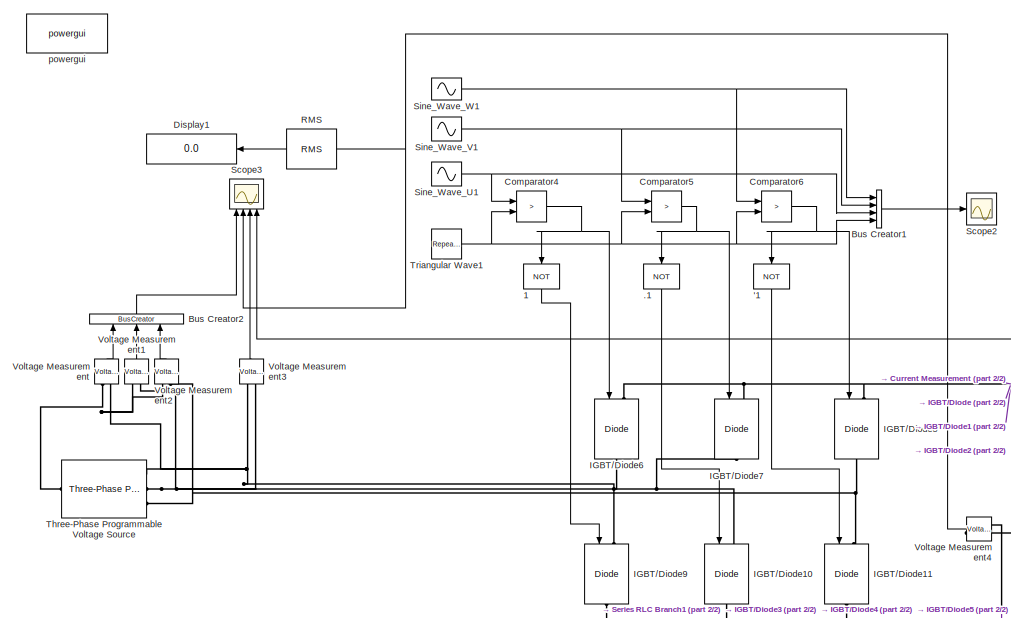
[diagram: root canvas - part 1/2, left side, full height]
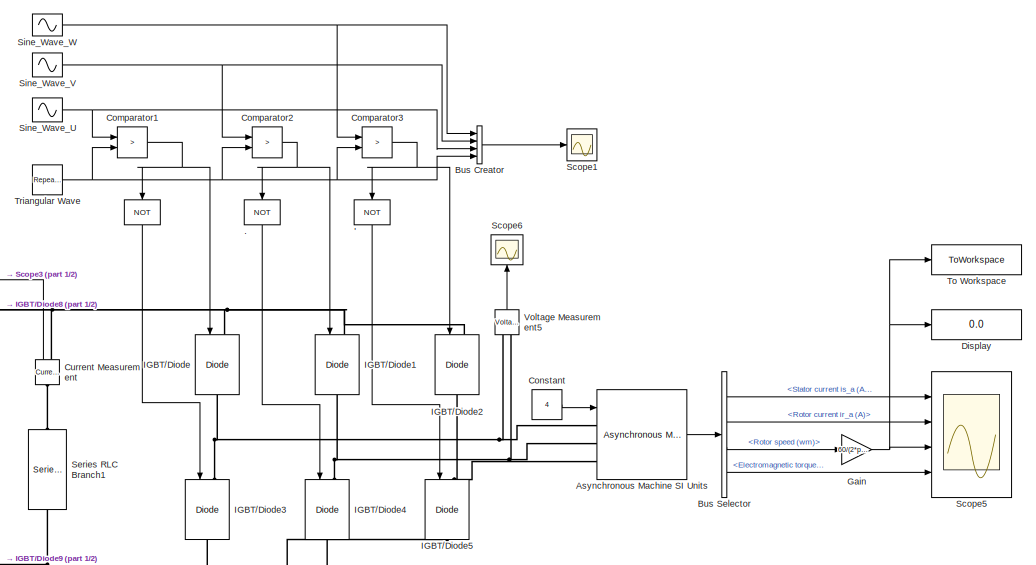
[diagram: root canvas - part 2/2, right side, full height]
MODEL slx_601a453b7c3d
KIND model
CONFIG AbsTol = auto
CONFIG EnableMultiTasking = off
CONFIG FixedStep = auto
CONFIG MaxStep = auto
CONFIG MinStep = auto
CONFIG RelTol = 1e-3
CONFIG SampleTimeConstraint = Unconstrained
CONFIG Solver = VariableStepAuto
CONFIG SolverName = VariableStepAuto
CONFIG StartTime = 0.0
CONFIG StopTime = 2
BLOCK [Logic]  
  AllPortsSameDT = off
  Operator = NOT
  OutDataTypeStr = boolean
  Ports = [1, 1]
BLOCK [Logic]  '
  AllPortsSameDT = off
  Operator = NOT
  OutDataTypeStr = boolean
  Ports = [1, 1]
BLOCK [Logic]  '1
  AllPortsSameDT = off
  Operator = NOT
  OutDataTypeStr = boolean
  Ports = [1, 1]
BLOCK [Logic]  .
  AllPortsSameDT = off
  Operator = NOT
  OutDataTypeStr = boolean
  Ports = [1, 1]
BLOCK [Logic]  .1
  AllPortsSameDT = off
  Operator = NOT
  OutDataTypeStr = boolean
  Ports = [1, 1]
BLOCK [Logic]  1
  AllPortsSameDT = off
  Operator = NOT
  OutDataTypeStr = boolean
  Ports = [1, 1]
BLOCK [Reference] Asynchronous Machine SI Units  REF=powerlib/Machines/Asynchronous Machine
SI Units
  Ports = [1, 1, 0, 0, 0, 3]
  SourceBlock = powerlib/Machines/Asynchronous Machine\nSI Units
  SourceProductBaseCode = PS
  SourceProductName = Simscape Electrical
  SourceType = Asynchronous Machine
BLOCK [BusCreator] Bus Creator
  DialogController = Simulink.DDGSource_Bus
  DisplayOption = bar
  InheritFromInputs = on
  Inputs = 4
  Ports = [4, 1]
BLOCK [BusCreator] Bus Creator1
  DialogController = Simulink.DDGSource_Bus
  DisplayOption = bar
  InheritFromInputs = on
  Inputs = 4
  Ports = [4, 1]
BLOCK [BusCreator] Bus Creator2
  DialogController = Simulink.DDGSource_Bus
  DisplayOption = bar
  InheritFromInputs = on
  Inputs = 3
  Ports = [3, 1]
BLOCK [BusSelector] Bus Selector
  OutputAsBus = off
  OutputSignals = Stator measurements.Stator current is_a (A),Rotor measurements.Rotor current ir_a (A),Mechanical.Rotor speed (wm),Mechanical.Electromagnetic torque Te (N*m)
  Ports = [1, 4]
BLOCK [RelationalOperator] Comparator1
  InputSameDT = off
  Operator = >
  OutDataTypeStr = boolean
  Ports = [2, 1]
BLOCK [RelationalOperator] Comparator2
  InputSameDT = off
  Operator = >
  OutDataTypeStr = boolean
  Ports = [2, 1]
BLOCK [RelationalOperator] Comparator3
  InputSameDT = off
  Operator = >
  OutDataTypeStr = boolean
  Ports = [2, 1]
BLOCK [RelationalOperator] Comparator4
  InputSameDT = off
  Operator = >
  OutDataTypeStr = boolean
  Ports = [2, 1]
BLOCK [RelationalOperator] Comparator5
  InputSameDT = off
  Operator = >
  OutDataTypeStr = boolean
  Ports = [2, 1]
BLOCK [RelationalOperator] Comparator6
  InputSameDT = off
  Operator = >
  OutDataTypeStr = boolean
  Ports = [2, 1]
BLOCK [Constant] Constant
  Value = 4
BLOCK [Reference] Current Measurement  REF=powerlib/Measurements/Current Measurement
  Ports = [0, 1, 0, 0, 0, 1, 1]
  SourceBlock = powerlib/Measurements/Current Measurement
  SourceProductBaseCode = PS
  SourceProductName = Simscape Electrical
  SourceType = Current Measurement
  UserDataPersistent = on
BLOCK [Display] Display
  Decimation = 1
  Ports = [1]
BLOCK [Display] Display1
  Decimation = 1
  Ports = [1]
BLOCK [Gain] Gain
  Gain = 60/(2*pi)
  OutDataTypeStr = Inherit: Inherit via internal rule
  ParamDataTypeStr = Inherit: Inherit via internal rule
  SaturateOnIntegerOverflow = off
BLOCK [Reference] IGBT//Diode  REF=powerlib/Power
Electronics/IGBT//Diode
  Ports = [1, 0, 0, 0, 0, 1, 1]
  SourceBlock = powerlib/Power\nElectronics/IGBT//Diode
  SourceProductBaseCode = PS
  SourceProductName = Simscape Electrical
  SourceType = IGBT/Diode
BLOCK [Reference] IGBT//Diode1  REF=powerlib/Power
Electronics/IGBT//Diode
  Ports = [1, 0, 0, 0, 0, 1, 1]
  SourceBlock = powerlib/Power\nElectronics/IGBT//Diode
  SourceProductBaseCode = PS
  SourceProductName = Simscape Electrical
  SourceType = IGBT/Diode
BLOCK [Reference] IGBT//Diode10  REF=powerlib/Power
Electronics/IGBT//Diode
  Ports = [1, 0, 0, 0, 0, 1, 1]
  SourceBlock = powerlib/Power\nElectronics/IGBT//Diode
  SourceProductBaseCode = PS
  SourceProductName = Simscape Electrical
  SourceType = IGBT/Diode
BLOCK [Reference] IGBT//Diode11  REF=powerlib/Power
Electronics/IGBT//Diode
  Ports = [1, 0, 0, 0, 0, 1, 1]
  SourceBlock = powerlib/Power\nElectronics/IGBT//Diode
  SourceProductBaseCode = PS
  SourceProductName = Simscape Electrical
  SourceType = IGBT/Diode
BLOCK [Reference] IGBT//Diode2  REF=powerlib/Power
Electronics/IGBT//Diode
  Ports = [1, 0, 0, 0, 0, 1, 1]
  SourceBlock = powerlib/Power\nElectronics/IGBT//Diode
  SourceProductBaseCode = PS
  SourceProductName = Simscape Electrical
  SourceType = IGBT/Diode
BLOCK [Reference] IGBT//Diode3  REF=powerlib/Power
Electronics/IGBT//Diode
  Ports = [1, 0, 0, 0, 0, 1, 1]
  SourceBlock = powerlib/Power\nElectronics/IGBT//Diode
  SourceProductBaseCode = PS
  SourceProductName = Simscape Electrical
  SourceType = IGBT/Diode
BLOCK [Reference] IGBT//Diode4  REF=powerlib/Power
Electronics/IGBT//Diode
  Ports = [1, 0, 0, 0, 0, 1, 1]
  SourceBlock = powerlib/Power\nElectronics/IGBT//Diode
  SourceProductBaseCode = PS
  SourceProductName = Simscape Electrical
  SourceType = IGBT/Diode
BLOCK [Reference] IGBT//Diode5  REF=powerlib/Power
Electronics/IGBT//Diode
  Ports = [1, 0, 0, 0, 0, 1, 1]
  SourceBlock = powerlib/Power\nElectronics/IGBT//Diode
  SourceProductBaseCode = PS
  SourceProductName = Simscape Electrical
  SourceType = IGBT/Diode
BLOCK [Reference] IGBT//Diode6  REF=powerlib/Power
Electronics/IGBT//Diode
  Ports = [1, 0, 0, 0, 0, 1, 1]
  SourceBlock = powerlib/Power\nElectronics/IGBT//Diode
  SourceProductBaseCode = PS
  SourceProductName = Simscape Electrical
  SourceType = IGBT/Diode
BLOCK [Reference] IGBT//Diode7  REF=powerlib/Power
Electronics/IGBT//Diode
  Ports = [1, 0, 0, 0, 0, 1, 1]
  SourceBlock = powerlib/Power\nElectronics/IGBT//Diode
  SourceProductBaseCode = PS
  SourceProductName = Simscape Electrical
  SourceType = IGBT/Diode
BLOCK [Reference] IGBT//Diode8  REF=powerlib/Power
Electronics/IGBT//Diode
  Ports = [1, 0, 0, 0, 0, 1, 1]
  SourceBlock = powerlib/Power\nElectronics/IGBT//Diode
  SourceProductBaseCode = PS
  SourceProductName = Simscape Electrical
  SourceType = IGBT/Diode
BLOCK [Reference] IGBT//Diode9  REF=powerlib/Power
Electronics/IGBT//Diode
  Ports = [1, 0, 0, 0, 0, 1, 1]
  SourceBlock = powerlib/Power\nElectronics/IGBT//Diode
  SourceProductBaseCode = PS
  SourceProductName = Simscape Electrical
  SourceType = IGBT/Diode
BLOCK [Reference] RMS  REF=powerlib_meascontrol/Measurements/RMS
  Ports = [1, 1]
  SourceBlock = powerlib_meascontrol/Measurements/RMS
  SourceProductBaseCode = PS
  SourceProductName = Simscape Electrical
  SourceType = RMS
BLOCK [Scope] Scope1
  Floating = off
  NumInputPorts = 1
  Ports = [1]
  ScopeSpecificationString = Simulink.scopes.TimeScopeBlockCfg('CurrentConfiguration', extmgr.ConfigurationSet(extmgr.Configuration('Core','General UI',true,'FigureColor',[1 1 1]),extmgr.Configuration('Core','Source UI',true),extmgr.Configuration('Sources','WiredSimulink',true),extmgr.Configuration('Visuals','Time Domain',true,'SerializedDisplays',{struct('MinYLimReal','-1.25','MaxYLimReal','1.25','YLabelReal','','MinYLimMag'...<+1827ch>
BLOCK [Scope] Scope2
  Floating = off
  NumInputPorts = 1
  Ports = [1]
  ScopeSpecificationString = Simulink.scopes.TimeScopeBlockCfg('CurrentConfiguration', extmgr.ConfigurationSet(extmgr.Configuration('Core','General UI',true,'FigureColor',[1 1 1]),extmgr.Configuration('Core','Source UI',true),extmgr.Configuration('Sources','WiredSimulink',true,'DataLoggingVariableName','ScopeData1'),extmgr.Configuration('Visuals','Time Domain',true,'SerializedDisplays',{struct('MinYLimReal','-1.25','MaxYLimRe...<+1866ch>
BLOCK [Scope] Scope3
  Floating = off
  NumInputPorts = 4
  Ports = [4]
  ScopeSpecificationString = Simulink.scopes.TimeScopeBlockCfg('CurrentConfiguration', extmgr.ConfigurationSet(extmgr.Configuration('Core','General UI',true,'FigureColor',[1 1 1]),extmgr.Configuration('Core','Source UI',true),extmgr.Configuration('Sources','WiredSimulink',true,'DataLoggingVariableName','ScopeData2'),extmgr.Configuration('Visuals','Time Domain',true,'SerializedDisplays',{struct('MinYLimReal','-224.53656','MaxY...<+4250ch>
BLOCK [Scope] Scope5
  Floating = off
  NumInputPorts = 4
  Ports = [4]
  ScopeSpecificationString = Simulink.scopes.TimeScopeBlockCfg('CurrentConfiguration', extmgr.ConfigurationSet(extmgr.Configuration('Core','General UI',true,'FigureColor',[1 1 1]),extmgr.Configuration('Core','Source UI',true),extmgr.Configuration('Sources','WiredSimulink',true,'DataLoggingVariableName','ScopeData4'),extmgr.Configuration('Visuals','Time Domain',true,'SerializedDisplays',{struct('MinYLimReal','-160.79268','MaxY...<+4057ch>
BLOCK [Scope] Scope6
  Floating = off
  NumInputPorts = 1
  Ports = [1]
  ScopeSpecificationString = Simulink.scopes.TimeScopeBlockCfg('CurrentConfiguration', extmgr.ConfigurationSet(extmgr.Configuration('Core','General UI',true,'FigureColor',[1 1 1]),extmgr.Configuration('Core','Source UI',true),extmgr.Configuration('Sources','WiredSimulink',true,'DataLoggingVariableName','ScopeData1'),extmgr.Configuration('Visuals','Time Domain',true,'SerializedDisplays',{struct('MinYLimReal','-125.05052','MaxY...<+1839ch>
BLOCK [Reference] Series RLC Branch1  REF=powerlib/Elements/Series RLC Branch
  Ports = [0, 0, 0, 0, 0, 1, 1]
  SourceBlock = powerlib/Elements/Series RLC Branch
  SourceProductBaseCode = PS
  SourceProductName = Simscape Electrical
  SourceType = Series RLC Branch
BLOCK [Sin] Sine_Wave_U
  Amplitude = 0.8
  Frequency = 251
  Ports = [0, 1]
  SampleTime = 0
BLOCK [Sin] Sine_Wave_U1
  Amplitude = 0.8
  Frequency = 251
  Ports = [0, 1]
  SampleTime = 0
BLOCK [Sin] Sine_Wave_V
  Amplitude = 0.8
  Frequency = 251
  Phase = -2*pi/3
  Ports = [0, 1]
  SampleTime = 0
BLOCK [Sin] Sine_Wave_V1
  Amplitude = 0.8
  Frequency = 251
  Phase = -2*pi/3
  Ports = [0, 1]
  SampleTime = 0
BLOCK [Sin] Sine_Wave_W
  Amplitude = 0.8
  Frequency = 251
  Phase = 2*pi/3
  Ports = [0, 1]
  SampleTime = 0
BLOCK [Sin] Sine_Wave_W1
  Amplitude = 0.8
  Frequency = 251
  Phase = 2*pi/3
  Ports = [0, 1]
  SampleTime = 0
BLOCK [Reference] Three-Phase Programmable Voltage Source  REF=powerlib/Electrical
Sources/Three-Phase
Programmable
Voltage Source
  Ports = [0, 0, 0, 0, 0, 1, 3]
  SourceBlock = powerlib/Electrical\nSources/Three-Phase\nProgrammable\nVoltage Source
  SourceProductBaseCode = PS
  SourceProductName = Simscape Electrical
  SourceType = Three-Phase Programmable Voltage Source
BLOCK [ToWorkspace] To Workspace
  FixptAsFi = on
  MaxDataPoints = inf
  Ports = [1]
  SampleTime = -1
  Save2DSignal = 2-D array (concatenate along first dimension)
  VariableName = rotor_speed
BLOCK [Reference] Triangular Wave  REF=simulink/Sources/Repeating
Sequence
  Ports = [0, 1]
  SourceBlock = simulink/Sources/Repeating\nSequence
  SourceProductBaseCode = SL
  SourceProductName = Simulink
  SourceType = Repeating table
BLOCK [Reference] Triangular Wave1  REF=simulink/Sources/Repeating
Sequence
  Ports = [0, 1]
  SourceBlock = simulink/Sources/Repeating\nSequence
  SourceProductBaseCode = SL
  SourceProductName = Simulink
  SourceType = Repeating table
BLOCK [Reference] Voltage Measurement  REF=powerlib/Measurements/Voltage Measurement
  Ports = [0, 1, 0, 0, 0, 2]
  SourceBlock = powerlib/Measurements/Voltage Measurement
  SourceProductBaseCode = PS
  SourceProductName = Simscape Electrical
  SourceType = Voltage Measurement
  UserDataPersistent = on
BLOCK [Reference] Voltage Measurement1  REF=powerlib/Measurements/Voltage Measurement
  Ports = [0, 1, 0, 0, 0, 2]
  SourceBlock = powerlib/Measurements/Voltage Measurement
  SourceProductBaseCode = PS
  SourceProductName = Simscape Electrical
  SourceType = Voltage Measurement
  UserDataPersistent = on
BLOCK [Reference] Voltage Measurement2  REF=powerlib/Measurements/Voltage Measurement
  Ports = [0, 1, 0, 0, 0, 2]
  SourceBlock = powerlib/Measurements/Voltage Measurement
  SourceProductBaseCode = PS
  SourceProductName = Simscape Electrical
  SourceType = Voltage Measurement
  UserDataPersistent = on
BLOCK [Reference] Voltage Measurement3  REF=powerlib/Measurements/Voltage Measurement
  Ports = [0, 1, 0, 0, 0, 2]
  SourceBlock = powerlib/Measurements/Voltage Measurement
  SourceProductBaseCode = PS
  SourceProductName = Simscape Electrical
  SourceType = Voltage Measurement
  UserDataPersistent = on
BLOCK [Reference] Voltage Measurement4  REF=powerlib/Measurements/Voltage Measurement
  Ports = [0, 1, 0, 0, 0, 2]
  SourceBlock = powerlib/Measurements/Voltage Measurement
  SourceProductBaseCode = PS
  SourceProductName = Simscape Electrical
  SourceType = Voltage Measurement
  UserDataPersistent = on
BLOCK [Reference] Voltage Measurement5  REF=powerlib/Measurements/Voltage Measurement
  Ports = [0, 1, 0, 0, 0, 2]
  SourceBlock = powerlib/Measurements/Voltage Measurement
  SourceProductBaseCode = PS
  SourceProductName = Simscape Electrical
  SourceType = Voltage Measurement
  UserDataPersistent = on
BLOCK [Reference] powergui  REF=powerlib/powergui
  Ports = []
  Priority = 1
  SourceBlock = powerlib/powergui
  SourceProductBaseCode = PS
  SourceProductName = Simscape Electrical
  SourceType = PSB option menu block
LINE  '1:1 -> IGBT//Diode11:1
LINE  ':1 -> IGBT//Diode5:1
LINE  .1:1 -> IGBT//Diode10:1
LINE  .:1 -> IGBT//Diode4:1
LINE  1:1 -> IGBT//Diode9:1
LINE  :1 -> IGBT//Diode3:1
LINE Asynchronous Machine SI Units:1 -> Bus Selector:1
LINE Bus Creator1:1 -> Scope2:1
LINE Bus Creator2:1 -> Scope3:1
LINE Bus Creator:1 -> Scope1:1
LINE Bus Selector:1 -> Scope5:1
LINE Bus Selector:2 -> Scope5:2
LINE Bus Selector:3 -> Gain:1
LINE Bus Selector:4 -> Scope5:4
NET Comparator1:1 ->  :1, IGBT//Diode:1
NET Comparator2:1 ->  .:1, IGBT//Diode1:1
NET Comparator3:1 ->  ':1, IGBT//Diode2:1
NET Comparator4:1 ->  1:1, IGBT//Diode6:1
NET Comparator5:1 ->  .1:1, IGBT//Diode7:1
NET Comparator6:1 ->  '1:1, IGBT//Diode8:1
LINE Constant:1 -> Asynchronous Machine SI Units:1
LINE Current Measurement:1 -> Scope3:4
NET Gain:1 -> Display:1, Scope5:3, To Workspace:1
LINE RMS:1 -> Display1:1
NET Sine_Wave_U1:1 -> Bus Creator1:3, Comparator4:1
NET Sine_Wave_U:1 -> Bus Creator:3, Comparator1:1
NET Sine_Wave_V1:1 -> Bus Creator1:2, Comparator5:1
NET Sine_Wave_V:1 -> Bus Creator:2, Comparator2:1
NET Sine_Wave_W1:1 -> Bus Creator1:1, Comparator6:1
NET Sine_Wave_W:1 -> Bus Creator:1, Comparator3:1
NET Triangular Wave1:1 -> Bus Creator1:4, Comparator4:2, Comparator5:2, Comparator6:2
NET Triangular Wave:1 -> Bus Creator:4, Comparator1:2, Comparator2:2, Comparator3:2
LINE Voltage Measurement1:1 -> Bus Creator2:2
LINE Voltage Measurement2:1 -> Bus Creator2:3
LINE Voltage Measurement3:1 -> Scope3:3
NET Voltage Measurement4:1 -> RMS:1, Scope3:2
LINE Voltage Measurement5:1 -> Scope6:1
LINE Voltage Measurement:1 -> Bus Creator2:1
PNET net1: Asynchronous Machine SI Units:LConn1 -- IGBT//Diode3:LConn1 -- IGBT//Diode:RConn1 -- Voltage Measurement5:LConn1
PNET net2: Asynchronous Machine SI Units:LConn2 -- IGBT//Diode1:RConn1 -- IGBT//Diode4:LConn1 -- Voltage Measurement5:LConn2
PNET net3: Asynchronous Machine SI Units:LConn3 -- IGBT//Diode2:RConn1 -- IGBT//Diode5:LConn1
PLINE Current Measurement:LConn1 -- Series RLC Branch1:LConn1
PNET net4: Current Measurement:RConn1 -- IGBT//Diode1:LConn1 -- IGBT//Diode2:LConn1 -- IGBT//Diode6:LConn1 -- IGBT//Diode7:LConn1 -- IGBT//Diode8:LConn1 -- IGBT//Diode:LConn1 -- Voltage Measurement4:LConn2
PNET net5: IGBT//Diode10:LConn1 -- IGBT//Diode7:RConn1 -- Three-Phase Programmable Voltage Source:RConn2 -- Voltage Measurement1:LConn2 -- Voltage Measurement3:LConn2
PNET net6: IGBT//Diode10:RConn1 -- IGBT//Diode11:RConn1 -- IGBT//Diode3:RConn1 -- IGBT//Diode4:RConn1 -- IGBT//Diode5:RConn1 -- IGBT//Diode9:RConn1 -- Series RLC Branch1:RConn1 -- Voltage Measurement4:LConn1
PNET net7: IGBT//Diode11:LConn1 -- IGBT//Diode8:RConn1 -- Three-Phase Programmable Voltage Source:RConn3 -- Voltage Measurement2:LConn2
PNET net8: IGBT//Diode6:RConn1 -- IGBT//Diode9:LConn1 -- Three-Phase Programmable Voltage Source:RConn1 -- Voltage Measurement3:LConn1 -- Voltage Measurement:LConn2
PNET net9: Three-Phase Programmable Voltage Source:LConn1 -- Voltage Measurement1:LConn1 -- Voltage Measurement2:LConn1 -- Voltage Measurement:LConn1
note: NET lines group one-source signal fan-out (src -> all destinations, sorted); 1:1 wires keep LINE; PNET lines group multi-terminal physical nets as a canonical sorted terminal list (undirected conserving connections); 2-terminal nets keep the pairwise PLINE form
